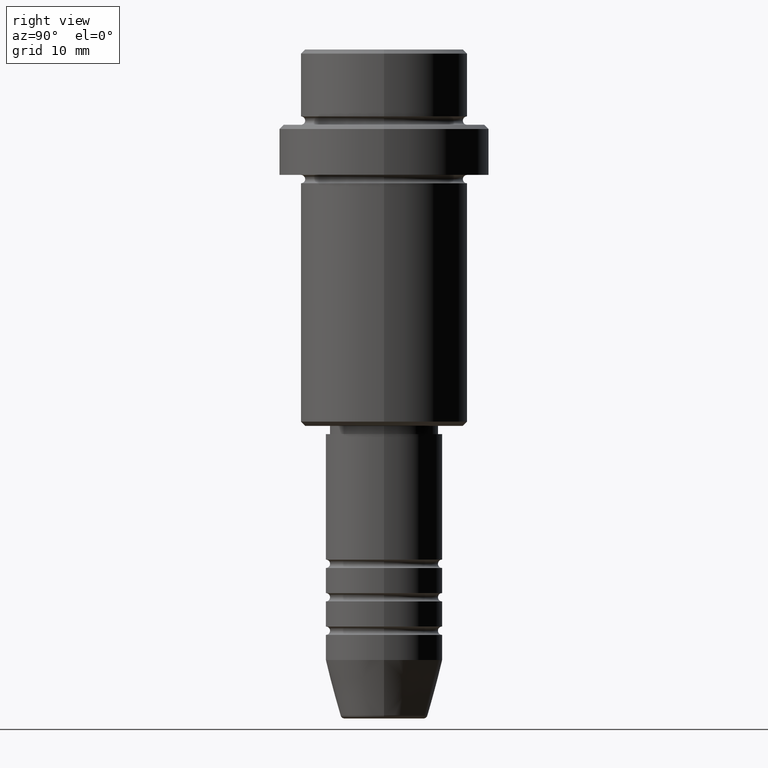
[diagram: clean part render]
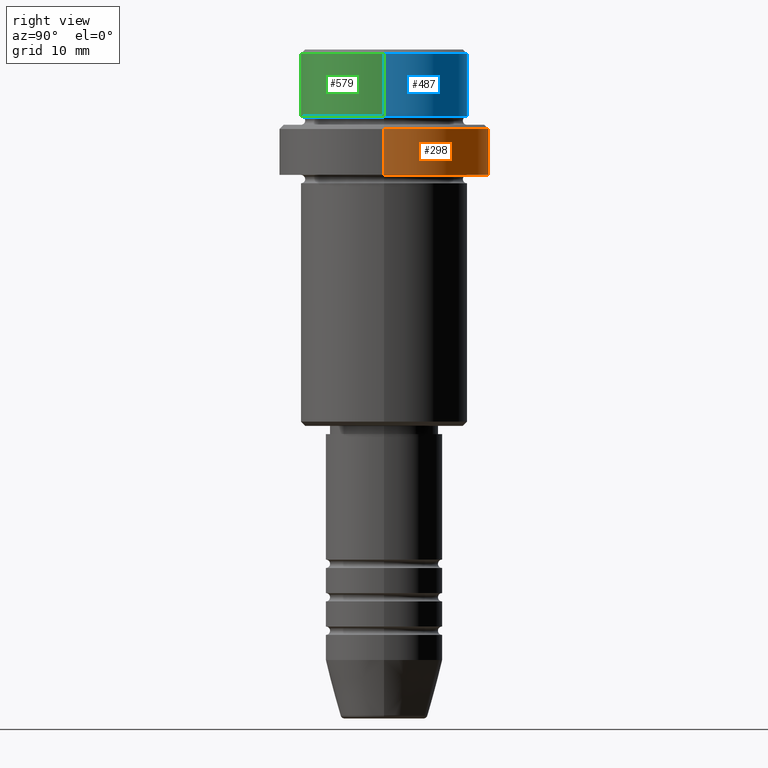
[diagram: same view with three faces highlighted in distinct colors, each labeled with its STEP entity id]
A machine part, right view with three faces highlighted in distinct colors.
Their STEP definitions:

[orange] entity #298 — the highlighted cylindrical surface (partial cylindrical patch) has radius 12.5 mm, axis along (-0, -0, 1).
#9 = CYLINDRICAL_SURFACE ( 'NONE', #913, 12.50000000000000000 ) ;
#20 = VERTEX_POINT ( 'NONE', #486 ) ;
#65 = CARTESIAN_POINT ( 'NONE',  ( -12.50000000000000000, 1.530808498934191521E-15, 0.000000000000000000 ) ) ;
#107 = LINE ( 'NONE', #1310, #569 ) ;
#115 = DIRECTION ( 'NONE',  ( -0.000000000000000000, -0.000000000000000000, 1.000000000000000000 ) ) ;
#119 = DIRECTION ( 'NONE',  ( 1.000000000000000000, 0.000000000000000000, 0.000000000000000000 ) ) ;
#120 = ORIENTED_EDGE ( 'NONE', *, *, #916, .T. ) ;
#185 = AXIS2_PLACEMENT_3D ( 'NONE', #757, #977, #1073 ) ;
#221 = CARTESIAN_POINT ( 'NONE',  ( -12.50000000000000000, 1.530808498934191521E-15, -9.499999999999998224 ) ) ;
#262 = VERTEX_POINT ( 'NONE', #682 ) ;
#263 = CARTESIAN_POINT ( 'NONE',  ( 12.50000000000000000, 0.000000000000000000, -15.00000000000000000 ) ) ;
#298 = ADVANCED_FACE ( 'NONE', ( #1340 ), #9, .T. ) ;
#310 = DIRECTION ( 'NONE',  ( 0.000000000000000000, 0.000000000000000000, -1.000000000000000000 ) ) ;
#329 = VECTOR ( 'NONE', #731, 1000.000000000000000 ) ;
#339 = DIRECTION ( 'NONE',  ( -0.000000000000000000, -0.000000000000000000, 1.000000000000000000 ) ) ;
#360 = CIRCLE ( 'NONE', #185, 12.50000000000000000 ) ;
#432 = CARTESIAN_POINT ( 'NONE',  ( 0.000000000000000000, 0.000000000000000000, 0.000000000000000000 ) ) ;
#486 = CARTESIAN_POINT ( 'NONE',  ( -12.50000000000000000, 1.530808498934191521E-15, -15.00000000000000000 ) ) ;
#489 = VERTEX_POINT ( 'NONE', #263 ) ;
#493 = ORIENTED_EDGE ( 'NONE', *, *, #1410, .F. ) ;
#569 = VECTOR ( 'NONE', #115, 1000.000000000000000 ) ;
#632 = CARTESIAN_POINT ( 'NONE',  ( 0.000000000000000000, 0.000000000000000000, -9.499999999999998224 ) ) ;
#682 = CARTESIAN_POINT ( 'NONE',  ( 12.50000000000000000, 0.000000000000000000, -9.499999999999998224 ) ) ;
#687 = CIRCLE ( 'NONE', #898, 12.50000000000000000 ) ;
#728 = VERTEX_POINT ( 'NONE', #221 ) ;
#729 = EDGE_CURVE ( 'NONE', #489, #20, #360, .T. ) ;
#731 = DIRECTION ( 'NONE',  ( -0.000000000000000000, -0.000000000000000000, 1.000000000000000000 ) ) ;
#757 = CARTESIAN_POINT ( 'NONE',  ( 0.000000000000000000, 0.000000000000000000, -15.00000000000000000 ) ) ;
#777 = ORIENTED_EDGE ( 'NONE', *, *, #729, .T. ) ;
#803 = EDGE_CURVE ( 'NONE', #728, #262, #687, .T. ) ;
#898 = AXIS2_PLACEMENT_3D ( 'NONE', #632, #310, #1186 ) ;
#913 = AXIS2_PLACEMENT_3D ( 'NONE', #432, #339, #119 ) ;
#916 = EDGE_CURVE ( 'NONE', #20, #728, #1042, .T. ) ;
#977 = DIRECTION ( 'NONE',  ( -0.000000000000000000, -0.000000000000000000, 1.000000000000000000 ) ) ;
#996 = EDGE_LOOP ( 'NONE', ( #777, #120, #1323, #493 ) ) ;
#1042 = LINE ( 'NONE', #65, #329 ) ;
#1073 = DIRECTION ( 'NONE',  ( 1.000000000000000000, 0.000000000000000000, 0.000000000000000000 ) ) ;
#1186 = DIRECTION ( 'NONE',  ( 1.000000000000000000, 0.000000000000000000, 0.000000000000000000 ) ) ;
#1310 = CARTESIAN_POINT ( 'NONE',  ( 12.50000000000000000, 0.000000000000000000, 0.000000000000000000 ) ) ;
#1323 = ORIENTED_EDGE ( 'NONE', *, *, #803, .T. ) ;
#1340 = FACE_OUTER_BOUND ( 'NONE', #996, .T. ) ;
#1410 = EDGE_CURVE ( 'NONE', #489, #262, #107, .T. ) ;

[blue] entity #487 — the highlighted cylindrical surface (partial cylindrical patch) has radius 10 mm, axis along (-0, -0, 1).
#6 = CARTESIAN_POINT ( 'NONE',  ( 9.999999999999998224, 0.000000000000000000, 0.000000000000000000 ) ) ;
#81 = VERTEX_POINT ( 'NONE', #1063 ) ;
#89 = EDGE_CURVE ( 'NONE', #192, #81, #1176, .T. ) ;
#175 = CYLINDRICAL_SURFACE ( 'NONE', #295, 9.999999999999998224 ) ;
#178 = AXIS2_PLACEMENT_3D ( 'NONE', #937, #1381, #837 ) ;
#192 = VERTEX_POINT ( 'NONE', #463 ) ;
#216 = DIRECTION ( 'NONE',  ( -0.000000000000000000, -0.000000000000000000, 1.000000000000000000 ) ) ;
#291 = DIRECTION ( 'NONE',  ( -0.000000000000000000, -0.000000000000000000, 1.000000000000000000 ) ) ;
#295 = AXIS2_PLACEMENT_3D ( 'NONE', #603, #405, #510 ) ;
#321 = DIRECTION ( 'NONE',  ( -0.000000000000000000, -0.000000000000000000, 1.000000000000000000 ) ) ;
#348 = CIRCLE ( 'NONE', #1285, 9.999999999999998224 ) ;
#395 = CARTESIAN_POINT ( 'NONE',  ( 9.999999999999998224, 0.000000000000000000, -7.999999999999998224 ) ) ;
#405 = DIRECTION ( 'NONE',  ( -0.000000000000000000, -0.000000000000000000, 1.000000000000000000 ) ) ;
#463 = CARTESIAN_POINT ( 'NONE',  ( -9.999999999999998224, 1.224646799147353059E-15, -7.999999999999998224 ) ) ;
#487 = ADVANCED_FACE ( 'NONE', ( #1175 ), #175, .T. ) ;
#510 = DIRECTION ( 'NONE',  ( 1.000000000000000000, 0.000000000000000000, 0.000000000000000000 ) ) ;
#598 = VERTEX_POINT ( 'NONE', #980 ) ;
#603 = CARTESIAN_POINT ( 'NONE',  ( 0.000000000000000000, 0.000000000000000000, 0.000000000000000000 ) ) ;
#615 = EDGE_CURVE ( 'NONE', #848, #598, #635, .T. ) ;
#635 = LINE ( 'NONE', #6, #1346 ) ;
#683 = CIRCLE ( 'NONE', #178, 9.999999999999998224 ) ;
#752 = CARTESIAN_POINT ( 'NONE',  ( -9.999999999999998224, 1.224646799147353059E-15, 0.000000000000000000 ) ) ;
#809 = DIRECTION ( 'NONE',  ( 1.000000000000000000, 0.000000000000000000, 0.000000000000000000 ) ) ;
#820 = EDGE_LOOP ( 'NONE', ( #1308, #1204, #1327, #946 ) ) ;
#837 = DIRECTION ( 'NONE',  ( 1.000000000000000000, 0.000000000000000000, 0.000000000000000000 ) ) ;
#848 = VERTEX_POINT ( 'NONE', #395 ) ;
#934 = EDGE_CURVE ( 'NONE', #848, #192, #348, .T. ) ;
#937 = CARTESIAN_POINT ( 'NONE',  ( 0.000000000000000000, 0.000000000000000000, -0.4999999999999970024 ) ) ;
#946 = ORIENTED_EDGE ( 'NONE', *, *, #615, .F. ) ;
#980 = CARTESIAN_POINT ( 'NONE',  ( 9.999999999999998224, 0.000000000000000000, -0.4999999999999970024 ) ) ;
#1063 = CARTESIAN_POINT ( 'NONE',  ( -9.999999999999998224, 1.224646799147353059E-15, -0.4999999999999970024 ) ) ;
#1144 = VECTOR ( 'NONE', #321, 1000.000000000000000 ) ;
#1168 = CARTESIAN_POINT ( 'NONE',  ( 0.000000000000000000, 0.000000000000000000, -7.999999999999998224 ) ) ;
#1175 = FACE_OUTER_BOUND ( 'NONE', #820, .T. ) ;
#1176 = LINE ( 'NONE', #752, #1144 ) ;
#1204 = ORIENTED_EDGE ( 'NONE', *, *, #89, .T. ) ;
#1285 = AXIS2_PLACEMENT_3D ( 'NONE', #1168, #291, #809 ) ;
#1308 = ORIENTED_EDGE ( 'NONE', *, *, #934, .T. ) ;
#1327 = ORIENTED_EDGE ( 'NONE', *, *, #1357, .T. ) ;
#1346 = VECTOR ( 'NONE', #216, 1000.000000000000000 ) ;
#1357 = EDGE_CURVE ( 'NONE', #81, #598, #683, .T. ) ;
#1381 = DIRECTION ( 'NONE',  ( 0.000000000000000000, 0.000000000000000000, -1.000000000000000000 ) ) ;

[green] entity #579 — the highlighted cylindrical surface (partial cylindrical patch) has radius 10 mm, axis along (-0, -0, 1).
#6 = CARTESIAN_POINT ( 'NONE',  ( 9.999999999999998224, 0.000000000000000000, 0.000000000000000000 ) ) ;
#81 = VERTEX_POINT ( 'NONE', #1063 ) ;
#86 = EDGE_LOOP ( 'NONE', ( #879, #272, #1141, #279 ) ) ;
#89 = EDGE_CURVE ( 'NONE', #192, #81, #1176, .T. ) ;
#192 = VERTEX_POINT ( 'NONE', #463 ) ;
#216 = DIRECTION ( 'NONE',  ( -0.000000000000000000, -0.000000000000000000, 1.000000000000000000 ) ) ;
#272 = ORIENTED_EDGE ( 'NONE', *, *, #1326, .T. ) ;
#279 = ORIENTED_EDGE ( 'NONE', *, *, #706, .T. ) ;
#320 = DIRECTION ( 'NONE',  ( 0.000000000000000000, 0.000000000000000000, -1.000000000000000000 ) ) ;
#321 = DIRECTION ( 'NONE',  ( -0.000000000000000000, -0.000000000000000000, 1.000000000000000000 ) ) ;
#370 = CARTESIAN_POINT ( 'NONE',  ( 0.000000000000000000, 0.000000000000000000, 0.000000000000000000 ) ) ;
#389 = DIRECTION ( 'NONE',  ( 1.000000000000000000, 0.000000000000000000, 0.000000000000000000 ) ) ;
#395 = CARTESIAN_POINT ( 'NONE',  ( 9.999999999999998224, 0.000000000000000000, -7.999999999999998224 ) ) ;
#463 = CARTESIAN_POINT ( 'NONE',  ( -9.999999999999998224, 1.224646799147353059E-15, -7.999999999999998224 ) ) ;
#494 = CYLINDRICAL_SURFACE ( 'NONE', #648, 9.999999999999998224 ) ;
#555 = CIRCLE ( 'NONE', #573, 9.999999999999998224 ) ;
#573 = AXIS2_PLACEMENT_3D ( 'NONE', #1181, #320, #659 ) ;
#579 = ADVANCED_FACE ( 'NONE', ( #1355 ), #494, .T. ) ;
#598 = VERTEX_POINT ( 'NONE', #980 ) ;
#615 = EDGE_CURVE ( 'NONE', #848, #598, #635, .T. ) ;
#635 = LINE ( 'NONE', #6, #1346 ) ;
#648 = AXIS2_PLACEMENT_3D ( 'NONE', #370, #1373, #389 ) ;
#659 = DIRECTION ( 'NONE',  ( 1.000000000000000000, 0.000000000000000000, 0.000000000000000000 ) ) ;
#706 = EDGE_CURVE ( 'NONE', #598, #81, #555, .T. ) ;
#750 = DIRECTION ( 'NONE',  ( 1.000000000000000000, 0.000000000000000000, 0.000000000000000000 ) ) ;
#752 = CARTESIAN_POINT ( 'NONE',  ( -9.999999999999998224, 1.224646799147353059E-15, 0.000000000000000000 ) ) ;
#848 = VERTEX_POINT ( 'NONE', #395 ) ;
#879 = ORIENTED_EDGE ( 'NONE', *, *, #89, .F. ) ;
#980 = CARTESIAN_POINT ( 'NONE',  ( 9.999999999999998224, 0.000000000000000000, -0.4999999999999970024 ) ) ;
#992 = CIRCLE ( 'NONE', #1174, 9.999999999999998224 ) ;
#1063 = CARTESIAN_POINT ( 'NONE',  ( -9.999999999999998224, 1.224646799147353059E-15, -0.4999999999999970024 ) ) ;
#1141 = ORIENTED_EDGE ( 'NONE', *, *, #615, .T. ) ;
#1144 = VECTOR ( 'NONE', #321, 1000.000000000000000 ) ;
#1174 = AXIS2_PLACEMENT_3D ( 'NONE', #1292, #1401, #750 ) ;
#1176 = LINE ( 'NONE', #752, #1144 ) ;
#1181 = CARTESIAN_POINT ( 'NONE',  ( 0.000000000000000000, 0.000000000000000000, -0.4999999999999970024 ) ) ;
#1292 = CARTESIAN_POINT ( 'NONE',  ( 0.000000000000000000, 0.000000000000000000, -7.999999999999998224 ) ) ;
#1326 = EDGE_CURVE ( 'NONE', #192, #848, #992, .T. ) ;
#1346 = VECTOR ( 'NONE', #216, 1000.000000000000000 ) ;
#1355 = FACE_OUTER_BOUND ( 'NONE', #86, .T. ) ;
#1373 = DIRECTION ( 'NONE',  ( -0.000000000000000000, -0.000000000000000000, 1.000000000000000000 ) ) ;
#1401 = DIRECTION ( 'NONE',  ( -0.000000000000000000, -0.000000000000000000, 1.000000000000000000 ) ) ;